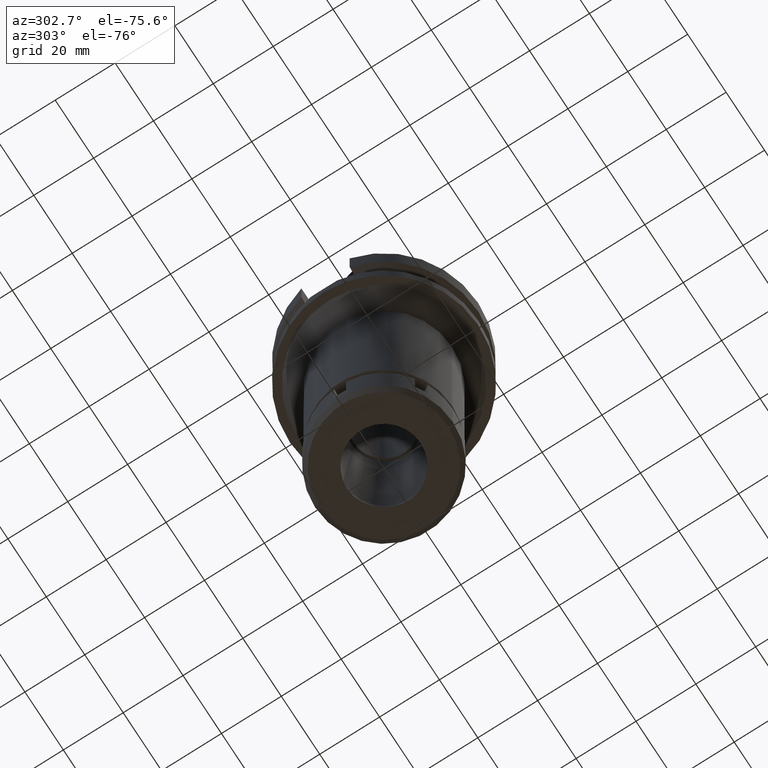
[diagram: clean part render]
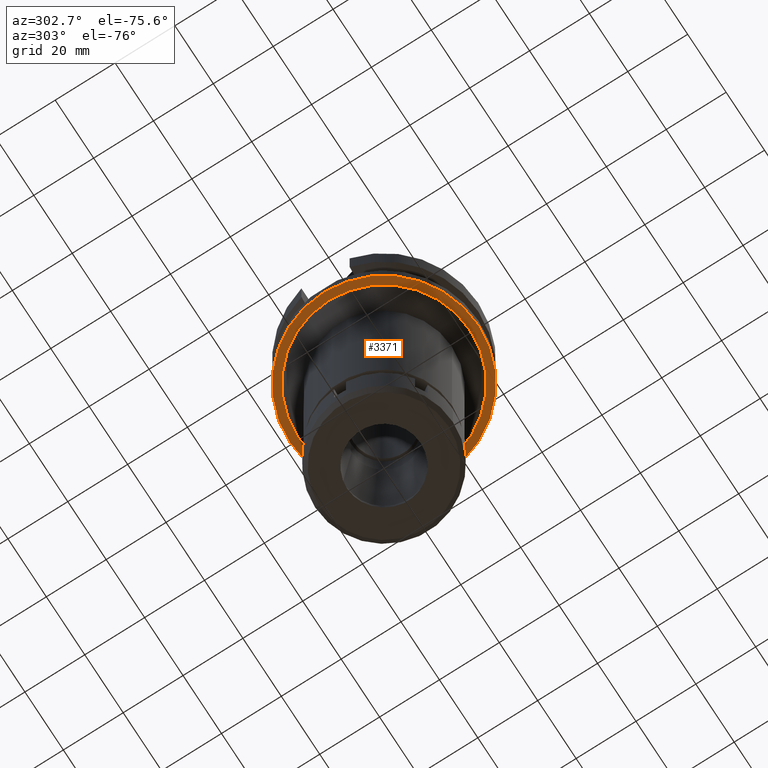
[diagram: same view with one face highlighted and labeled with its STEP entity id]
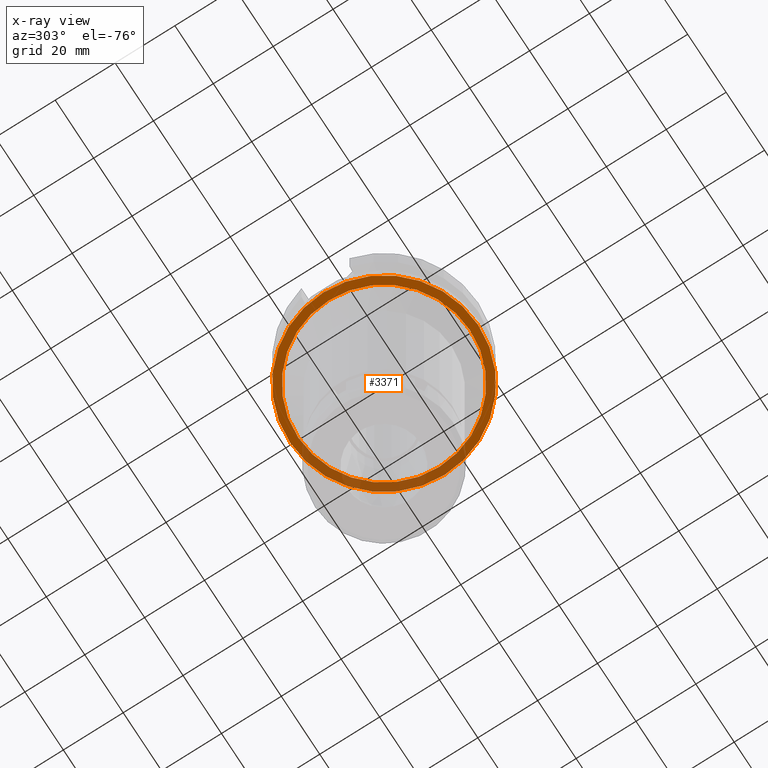
[diagram: x-ray of the same camera — body ghosted, the highlighted face saturated]
A machine part, auxiliary view. The second image highlights one B-rep face of the part: STEP entity #3371.
The next image is the same camera in x-ray: the body ghosted, the highlighted face saturated — about 28% of this face is hidden behind the body in this view.
In plain terms, the highlighted planar face has unit normal (0, 0, -1).
Its self-contained STEP definition (entity closure, byte-faithful):
#63 = CARTESIAN_POINT ( 'NONE',  ( 0.0000000000000000000, -31.50000000000000000, -27.00000000000000000 ) ) ;
#107 = DIRECTION ( 'NONE',  ( 0.0000000000000000000, 0.0000000000000000000, 1.000000000000000000 ) ) ;
#118 = DIRECTION ( 'NONE',  ( 0.0000000000000000000, -1.000000000000000000, 0.0000000000000000000 ) ) ;
#153 = CARTESIAN_POINT ( 'NONE',  ( 0.0000000000000000000, 0.0000000000000000000, -27.00000000000000000 ) ) ;
#278 = AXIS2_PLACEMENT_3D ( 'NONE', #2371, #2891, #424 ) ;
#409 = EDGE_CURVE ( 'NONE', #1846, #1325, #2648, .T. ) ;
#424 = DIRECTION ( 'NONE',  ( 0.0000000000000000000, 1.000000000000000000, 0.0000000000000000000 ) ) ;
#540 = CIRCLE ( 'NONE', #2178, 31.50000000000000000 ) ;
#614 = CARTESIAN_POINT ( 'NONE',  ( 0.0000000000000000000, 2.134191976873999699E-14, -27.00000000000000000 ) ) ;
#641 = ORIENTED_EDGE ( 'NONE', *, *, #409, .F. ) ;
#785 = ORIENTED_EDGE ( 'NONE', *, *, #1038, .F. ) ;
#824 = AXIS2_PLACEMENT_3D ( 'NONE', #614, #107, #2014 ) ;
#956 = EDGE_LOOP ( 'NONE', ( #1039, #641 ) ) ;
#989 = ORIENTED_EDGE ( 'NONE', *, *, #1458, .F. ) ;
#1038 = EDGE_CURVE ( 'NONE', #2023, #2392, #1933, .T. ) ;
#1039 = ORIENTED_EDGE ( 'NONE', *, *, #2856, .F. ) ;
#1167 = CARTESIAN_POINT ( 'NONE',  ( 0.0000000000000000000, 2.134191976873999699E-14, -27.00000000000000000 ) ) ;
#1284 = AXIS2_PLACEMENT_3D ( 'NONE', #153, #2993, #118 ) ;
#1325 = VERTEX_POINT ( 'NONE', #1949 ) ;
#1329 = CARTESIAN_POINT ( 'NONE',  ( 0.0000000000000000000, -28.75000000000000000, -27.00000000000000000 ) ) ;
#1389 = CIRCLE ( 'NONE', #278, 28.75000000000000000 ) ;
#1458 = EDGE_CURVE ( 'NONE', #2392, #2023, #540, .T. ) ;
#1512 = FACE_OUTER_BOUND ( 'NONE', #2273, .T. ) ;
#1550 = FACE_BOUND ( 'NONE', #956, .T. ) ;
#1846 = VERTEX_POINT ( 'NONE', #1329 ) ;
#1853 = CARTESIAN_POINT ( 'NONE',  ( 0.0000000000000000000, 0.0000000000000000000, -27.00000000000000000 ) ) ;
#1924 = CARTESIAN_POINT ( 'NONE',  ( 0.0000000000000000000, 31.50000000000000000, -27.00000000000000000 ) ) ;
#1933 = CIRCLE ( 'NONE', #824, 31.50000000000000000 ) ;
#1949 = CARTESIAN_POINT ( 'NONE',  ( 0.0000000000000000000, 28.75000000000000000, -27.00000000000000000 ) ) ;
#2014 = DIRECTION ( 'NONE',  ( 0.0000000000000000000, -1.000000000000000000, 0.0000000000000000000 ) ) ;
#2023 = VERTEX_POINT ( 'NONE', #63 ) ;
#2178 = AXIS2_PLACEMENT_3D ( 'NONE', #1167, #2294, #3131 ) ;
#2273 = EDGE_LOOP ( 'NONE', ( #989, #785 ) ) ;
#2294 = DIRECTION ( 'NONE',  ( 0.0000000000000000000, 0.0000000000000000000, 1.000000000000000000 ) ) ;
#2371 = CARTESIAN_POINT ( 'NONE',  ( 0.0000000000000000000, 0.0000000000000000000, -27.00000000000000000 ) ) ;
#2392 = VERTEX_POINT ( 'NONE', #1924 ) ;
#2648 = CIRCLE ( 'NONE', #2942, 28.75000000000000000 ) ;
#2683 = PLANE ( 'NONE',  #1284 ) ;
#2697 = DIRECTION ( 'NONE',  ( 0.0000000000000000000, -1.000000000000000000, 0.0000000000000000000 ) ) ;
#2713 = DIRECTION ( 'NONE',  ( 0.0000000000000000000, 0.0000000000000000000, -1.000000000000000000 ) ) ;
#2856 = EDGE_CURVE ( 'NONE', #1325, #1846, #1389, .T. ) ;
#2891 = DIRECTION ( 'NONE',  ( 0.0000000000000000000, 0.0000000000000000000, -1.000000000000000000 ) ) ;
#2942 = AXIS2_PLACEMENT_3D ( 'NONE', #1853, #2713, #2697 ) ;
#2993 = DIRECTION ( 'NONE',  ( 0.0000000000000000000, 0.0000000000000000000, -1.000000000000000000 ) ) ;
#3131 = DIRECTION ( 'NONE',  ( 0.0000000000000000000, 1.000000000000000000, 0.0000000000000000000 ) ) ;
#3371 = ADVANCED_FACE ( 'NONE', ( #1512, #1550 ), #2683, .T. ) ;